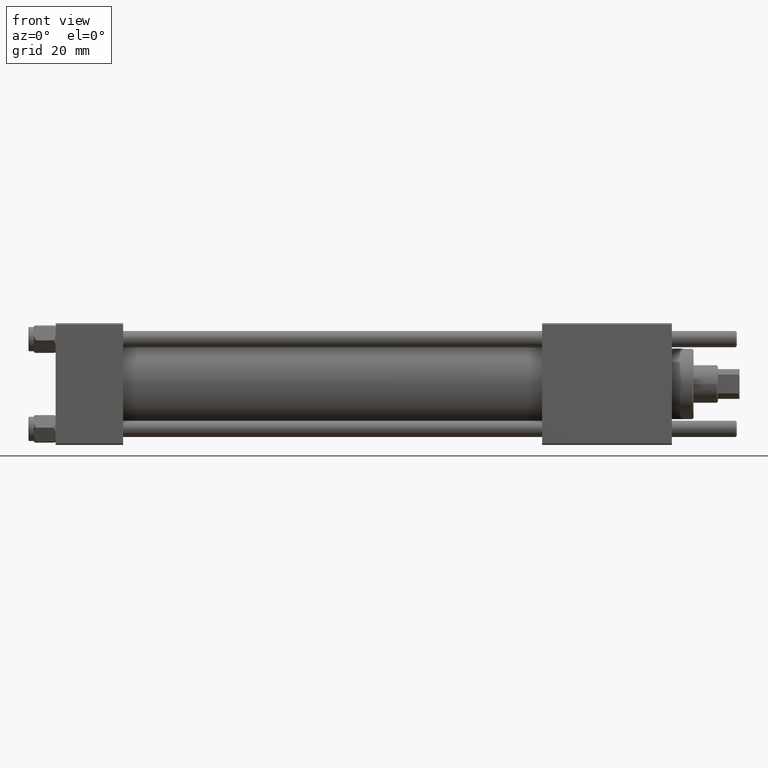
[diagram: clean part render]
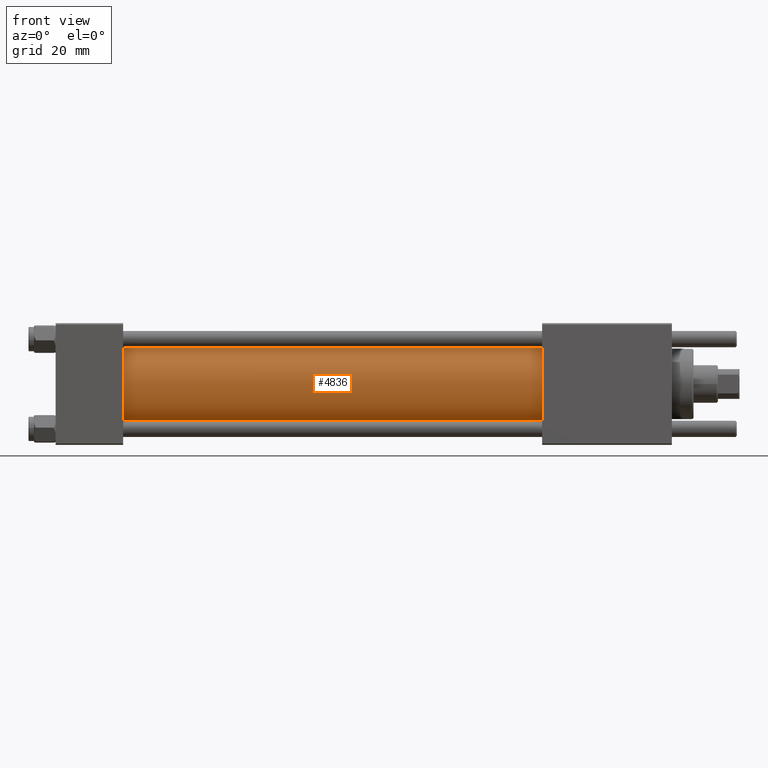
[diagram: same view with one face highlighted and labeled with its STEP entity id]
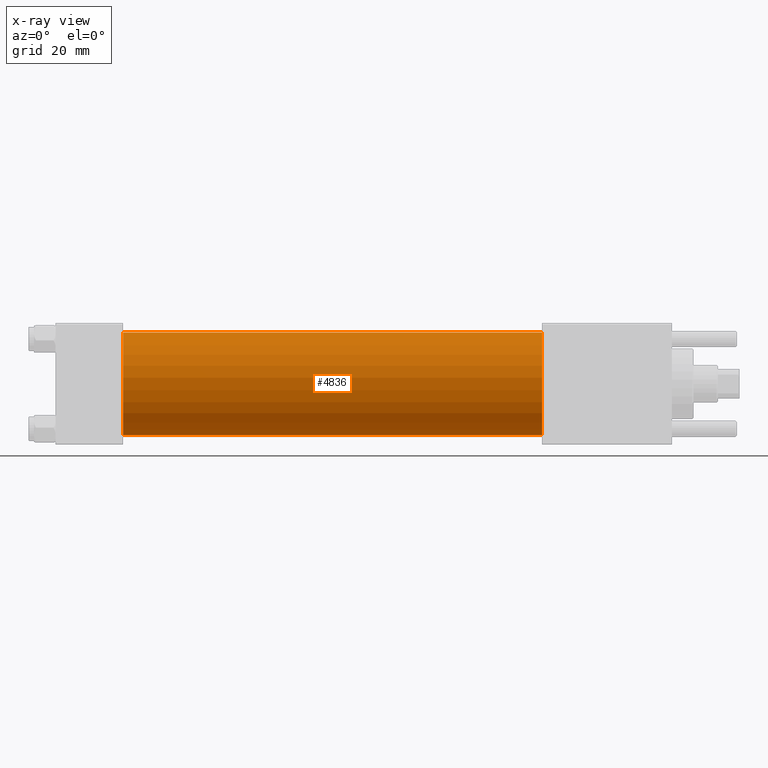
[diagram: x-ray of the same camera — body ghosted, the highlighted face saturated]
A machine part, front view. The second image highlights one B-rep face of the part: STEP entity #4836.
The next image is the same camera in x-ray: the body ghosted, the highlighted face saturated — about 0% of this face is hidden behind the body in this view.
In plain terms, the highlighted cylindrical surface (partial cylindrical patch) has radius 19 mm, axis along (-1, -0, -0).
Its self-contained STEP definition (entity closure, byte-faithful):
#2315 = DIRECTION ( 'NONE',  ( 1.000000000000000000, -0.000000000000000000, 0.000000000000000000 ) ) ;
#2827 = VERTEX_POINT ( 'NONE', #6931 ) ;
#3124 = CARTESIAN_POINT ( 'NONE',  ( 180.0000000000000000, -2.752562955852396712E-16, -19.00000000000000000 ) ) ;
#4836 = ADVANCED_FACE ( 'NONE', ( #46684 ), #25420, .T. ) ;
#5365 = DIRECTION ( 'NONE',  ( -1.000000000000000000, -0.000000000000000000, -0.000000000000000000 ) ) ;
#6732 = ORIENTED_EDGE ( 'NONE', *, *, #11082, .T. ) ;
#6931 = CARTESIAN_POINT ( 'NONE',  ( 180.0000000000000000, -2.602085213965210642E-15, 19.00000000000000000 ) ) ;
#8221 = EDGE_CURVE ( 'NONE', #2827, #44904, #37734, .T. ) ;
#11082 = EDGE_CURVE ( 'NONE', #19988, #41867, #28662, .T. ) ;
#15544 = ORIENTED_EDGE ( 'NONE', *, *, #8221, .F. ) ;
#16214 = DIRECTION ( 'NONE',  ( 0.000000000000000000, 0.000000000000000000, 1.000000000000000000 ) ) ;
#16836 = VECTOR ( 'NONE', #5365, 1000.000000000000000 ) ;
#17021 = CARTESIAN_POINT ( 'NONE',  ( 24.99999999999999289, -2.602085213965210642E-15, 19.00000000000000000 ) ) ;
#19131 = CARTESIAN_POINT ( 'NONE',  ( 180.0000000000000000, -2.752562955852396712E-16, -19.00000000000000000 ) ) ;
#19988 = VERTEX_POINT ( 'NONE', #17021 ) ;
#19991 = CARTESIAN_POINT ( 'NONE',  ( 180.0000000000000000, -2.602085213965210642E-15, 0.000000000000000000 ) ) ;
#21238 = AXIS2_PLACEMENT_3D ( 'NONE', #19991, #37538, #33216 ) ;
#22588 = LINE ( 'NONE', #19131, #16836 ) ;
#25420 = CYLINDRICAL_SURFACE ( 'NONE', #49593, 19.00000000000000000 ) ;
#28662 = CIRCLE ( 'NONE', #38766, 19.00000000000000000 ) ;
#29231 = CARTESIAN_POINT ( 'NONE',  ( 24.99999999999999289, -2.752562955852396712E-16, -19.00000000000000000 ) ) ;
#33216 = DIRECTION ( 'NONE',  ( 0.000000000000000000, 0.000000000000000000, -1.000000000000000000 ) ) ;
#33306 = EDGE_CURVE ( 'NONE', #2827, #19988, #45472, .T. ) ;
#35708 = ORIENTED_EDGE ( 'NONE', *, *, #33306, .T. ) ;
#37538 = DIRECTION ( 'NONE',  ( 1.000000000000000000, 0.000000000000000000, 0.000000000000000000 ) ) ;
#37734 = CIRCLE ( 'NONE', #21238, 19.00000000000000000 ) ;
#37953 = DIRECTION ( 'NONE',  ( 0.000000000000000000, 0.000000000000000000, 1.000000000000000000 ) ) ;
#38073 = CARTESIAN_POINT ( 'NONE',  ( 180.0000000000000000, -2.602085213965210642E-15, 0.000000000000000000 ) ) ;
#38766 = AXIS2_PLACEMENT_3D ( 'NONE', #41707, #2315, #37953 ) ;
#40120 = ORIENTED_EDGE ( 'NONE', *, *, #56150, .F. ) ;
#41707 = CARTESIAN_POINT ( 'NONE',  ( 24.99999999999999289, -2.602085213965210642E-15, 0.000000000000000000 ) ) ;
#41867 = VERTEX_POINT ( 'NONE', #29231 ) ;
#42627 = EDGE_LOOP ( 'NONE', ( #40120, #15544, #35708, #6732 ) ) ;
#43226 = DIRECTION ( 'NONE',  ( -1.000000000000000000, -0.000000000000000000, -0.000000000000000000 ) ) ;
#44623 = CARTESIAN_POINT ( 'NONE',  ( 180.0000000000000000, -2.602085213965210642E-15, 19.00000000000000000 ) ) ;
#44904 = VERTEX_POINT ( 'NONE', #3124 ) ;
#45188 = DIRECTION ( 'NONE',  ( -1.000000000000000000, -0.000000000000000000, -0.000000000000000000 ) ) ;
#45472 = LINE ( 'NONE', #44623, #47208 ) ;
#46684 = FACE_OUTER_BOUND ( 'NONE', #42627, .T. ) ;
#47208 = VECTOR ( 'NONE', #45188, 1000.000000000000000 ) ;
#49593 = AXIS2_PLACEMENT_3D ( 'NONE', #38073, #43226, #16214 ) ;
#56150 = EDGE_CURVE ( 'NONE', #44904, #41867, #22588, .T. ) ;